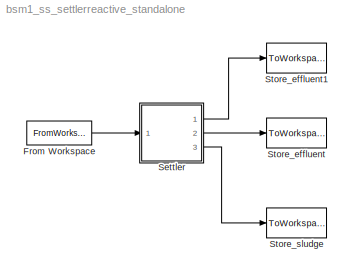
MODEL bsm1_ss_settlerreactive_standalone
KIND model
BLOCK [FromWorkspace] From Workspace
  SID = 659
  VariableName = Influent_settler
  ZeroCross = on
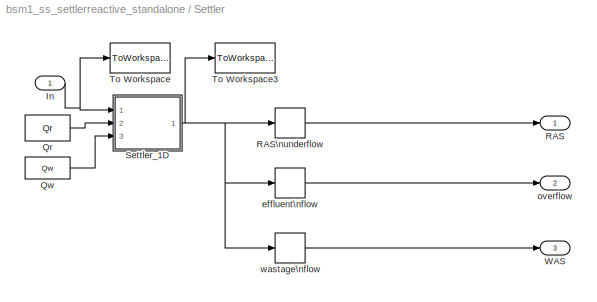
BLOCK [SubSystem] Settler
  FunctionWithSeparateData = off
  MaskHideContents = off
  MinAlgLoopOccurrences = off
  Opaque = off
  Ports = [1, 3]
  PropExecContextOutsideSubsystem = off
  RTWSystemCode = Auto
  RequestExecContextInheritance = off
  SID = 292
BLOCK [Inport] Settler/In
  IconDisplay = Port number
  SID = 293
BLOCK [Constant] Settler/Qr
  SID = 294
  Value = Qr
BLOCK [Constant] Settler/Qw
  SID = 295
  Value = Qw
BLOCK [Outport] Settler/RAS
  IconDisplay = Port number
  SID = 308
BLOCK [Selector] Settler/RAS\nunderflow
  IndexOptions = Index vector (dialog)
  Indices = [226 227 228 229 230 231 232 233 234 235 236 237 238 239 252 240 241 242 243 244 245 246 247 248 249 250]
  InputPortWidth = 253
  OutputSizes = 1
  Ports = [1, 1]
  SID = 296
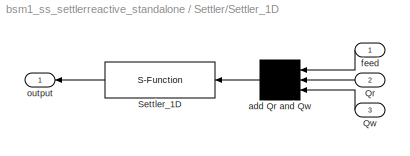
BLOCK [SubSystem] Settler/Settler_1D
  FunctionWithSeparateData = off
  MaskHideContents = off
  MinAlgLoopOccurrences = off
  Opaque = off
  Ports = [3, 1]
  PropExecContextOutsideSubsystem = off
  RTWSystemCode = Auto
  RequestExecContextInheritance = off
  SID = 297
BLOCK [Inport] Settler/Settler_1D/Qr
  IconDisplay = Port number
  Port = 2
  SID = 299
BLOCK [Inport] Settler/Settler_1D/Qw
  IconDisplay = Port number
  Port = 3
  SID = 300
BLOCK [S-Function] Settler/Settler_1D/Settler_1D
  EnableBusSupport = off
  FunctionName = settler1d_bsm1
  Parameters = SETTLERINIT,SETTLERPAR,DIM,LAYER,TEMPMODEL, ACTIVATE
  Ports = [1, 1]
  SID = 301
BLOCK [Mux] Settler/Settler_1D/add Qr and Qw
  Inputs = 3
  Ports = [3, 1]
  SID = 302
BLOCK [Inport] Settler/Settler_1D/feed
  IconDisplay = Port number
  SID = 298
BLOCK [Outport] Settler/Settler_1D/output
  IconDisplay = Port number
  SID = 303
BLOCK [ToWorkspace] Settler/To Workspace
  MaxDataPoints = inf
  Ports = [1]
  SID = 304
  VariableName = feed
BLOCK [ToWorkspace] Settler/To Workspace3
  MaxDataPoints = inf
  Ports = [1]
  SID = 305
  VariableName = settler
BLOCK [Outport] Settler/WAS
  IconDisplay = Port number
  Port = 3
  SID = 310
BLOCK [Selector] Settler/effluent\nflow
  IndexOptions = Index vector (dialog)
  Indices = [1:14, 251, 15:25]
  InputPortWidth = 253
  OutputSizes = 1
  Ports = [1, 1]
  SID = 306
BLOCK [Outport] Settler/overflow
  IconDisplay = Port number
  Port = 2
  SID = 309
BLOCK [Selector] Settler/wastage\nflow
  IndexOptions = Index vector (dialog)
  Indices = [226:239, 253, 240:250]
  InputPortWidth = 253
  OutputSizes = 1
  Ports = [1, 1]
  SID = 307
BLOCK [ToWorkspace] Store_effluent
  MaxDataPoints = inf
  Ports = [1]
  SID = 333
  VariableName = effluent
BLOCK [ToWorkspace] Store_effluent1
  MaxDataPoints = inf
  Ports = [1]
  SID = 658
  VariableName = recycle
BLOCK [ToWorkspace] Store_sludge
  MaxDataPoints = inf
  Ports = [1]
  SID = 335
  VariableName = sludge
LINE From Workspace:1 -> Settler:1
NET Settler/In:1 -> Settler/Settler_1D:1, Settler/To Workspace:1
LINE Settler/Qr:1 -> Settler/Settler_1D:2
LINE Settler/Qw:1 -> Settler/Settler_1D:3
LINE Settler/RAS\nunderflow:1 -> Settler/RAS:1
LINE Settler/Settler_1D/Qr:1 -> Settler/Settler_1D/add Qr and Qw:2
LINE Settler/Settler_1D/Qw:1 -> Settler/Settler_1D/add Qr and Qw:3
LINE Settler/Settler_1D/Settler_1D:1 -> Settler/Settler_1D/output:1
LINE Settler/Settler_1D/add Qr and Qw:1 -> Settler/Settler_1D/Settler_1D:1
LINE Settler/Settler_1D/feed:1 -> Settler/Settler_1D/add Qr and Qw:1
NET Settler/Settler_1D:1 -> Settler/RAS\nunderflow:1, Settler/To Workspace3:1, Settler/effluent\nflow:1, Settler/wastage\nflow:1
LINE Settler/effluent\nflow:1 -> Settler/overflow:1
LINE Settler/wastage\nflow:1 -> Settler/WAS:1
LINE Settler:1 -> Store_effluent1:1
LINE Settler:2 -> Store_effluent:1
LINE Settler:3 -> Store_sludge:1
note: NET lines group one-source signal fan-out (src -> all destinations, sorted); 1:1 wires keep LINE
